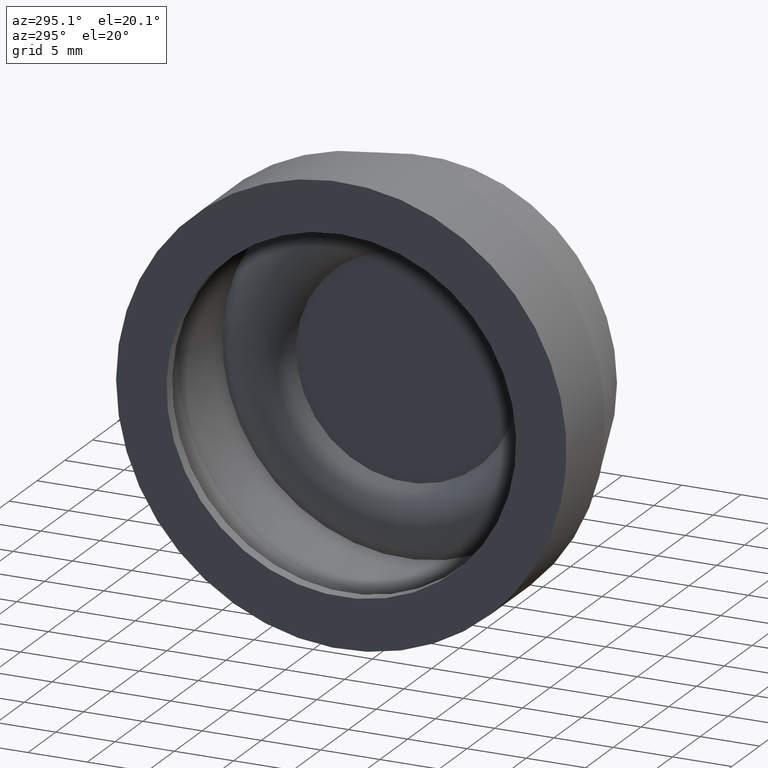
[diagram: clean part render]
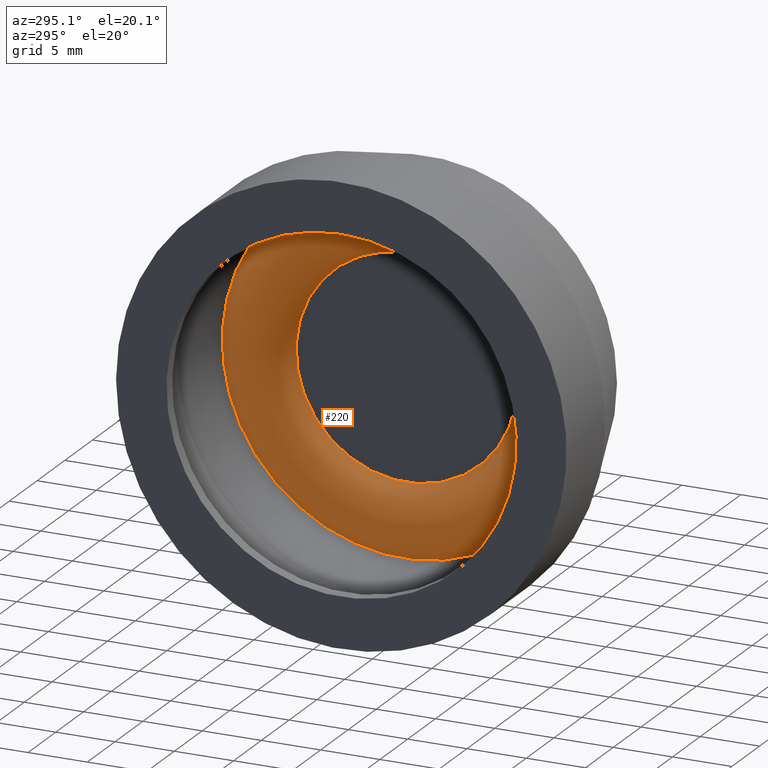
[diagram: same view with one face highlighted and labeled with its STEP entity id]
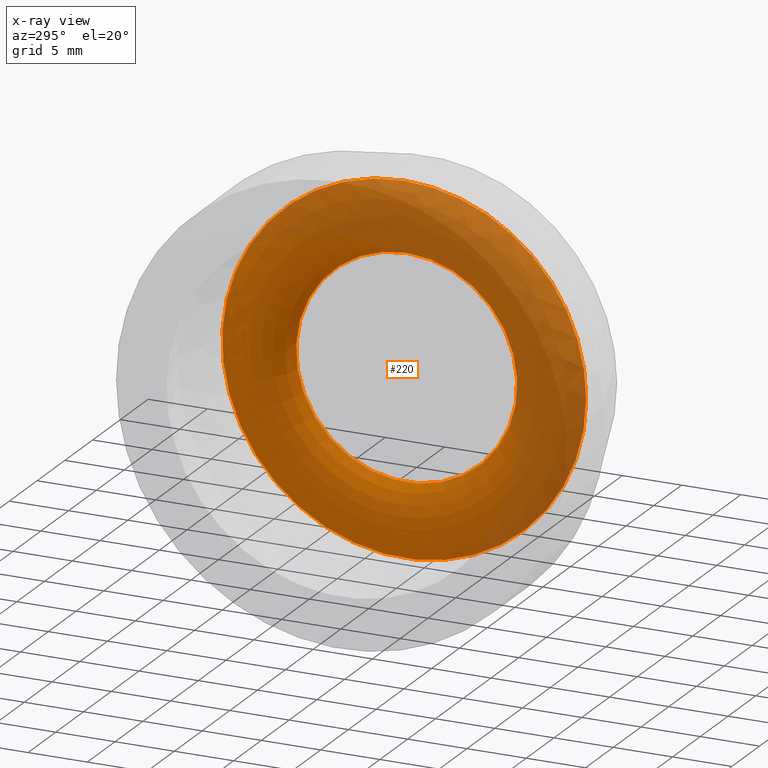
[diagram: x-ray of the same camera — body ghosted, the highlighted face saturated]
A machine part, auxiliary view. The second image highlights one B-rep face of the part: STEP entity #220.
The next image is the same camera in x-ray: the body ghosted, the highlighted face saturated — about 47% of this face is hidden behind the body in this view.
In plain terms, the highlighted face is a freeform B-spline surface patch.
Its self-contained STEP definition (entity closure, byte-faithful):
#121=CARTESIAN_POINT('',(-4.766375170140775,-23.239389475837516,1.879832E-015));
#122=VERTEX_POINT('',#121);
#123=CARTESIAN_POINT('',(-4.766375170140775,-7.888888950606166,0.0));
#124=DIRECTION('',(-1.0,0.0,0.0));
#125=DIRECTION('',(0.0,1.0,0.0));
#126=AXIS2_PLACEMENT_3D('',#123,#124,#125);
#127=CIRCLE('',#126,15.350500525231350);
#128=EDGE_CURVE('',#122,#122,#127,.T.);
#149=CARTESIAN_POINT('',(-4.329749069226685,-7.888888950606164,9.327855614887620));
#150=VERTEX_POINT('',#149);
#151=CARTESIAN_POINT('',(-4.329749069226685,-7.888888950606166,0.0));
#152=DIRECTION('',(-1.0,0.0,0.0));
#153=DIRECTION('',(0.0,0.0,-1.0));
#154=AXIS2_PLACEMENT_3D('',#151,#152,#153);
#155=CIRCLE('',#154,9.327855614887620);
#156=EDGE_CURVE('',#150,#150,#155,.F.);
#161=CARTESIAN_POINT('',(-4.329749069226686,-7.888888950606168,9.327855614887621));
#162=CARTESIAN_POINT('',(-6.079749069226686,-7.888888950606168,10.431210183622362));
#163=CARTESIAN_POINT('',(-6.079749069226686,-7.888888950606168,12.500000000000000));
#164=CARTESIAN_POINT('',(-6.079749069226686,-7.888888950606168,14.568789816377640));
#165=CARTESIAN_POINT('',(-4.329749069226685,-7.888888950606168,15.672144385112381));
#166=CARTESIAN_POINT('',(-4.329749069226686,-17.216744565493784,9.327855614887618));
#167=CARTESIAN_POINT('',(-6.079749069226686,-18.320099134228528,10.431210183622358));
#168=CARTESIAN_POINT('',(-6.079749069226686,-20.388888950606162,12.499999999999995));
#169=CARTESIAN_POINT('',(-6.079749069226686,-22.457678766983804,14.568789816377633));
#170=CARTESIAN_POINT('',(-4.329749069226685,-23.561033335718541,15.672144385112375));
#171=CARTESIAN_POINT('',(-4.329749069226686,-17.216744565493787,-1.776357E-015));
#172=CARTESIAN_POINT('',(-6.079749069226686,-18.320099134228524,-1.776357E-015));
#173=CARTESIAN_POINT('',(-6.079749069226686,-20.388888950606166,-1.776357E-015));
#174=CARTESIAN_POINT('',(-6.079749069226686,-22.457678766983804,-1.776357E-015));
#175=CARTESIAN_POINT('',(-4.329749069226685,-23.561033335718548,-1.776357E-015));
#176=CARTESIAN_POINT('',(-4.329749069226686,-17.216744565493784,-9.327855614887621));
#177=CARTESIAN_POINT('',(-6.079749069226686,-18.320099134228528,-10.431210183622362));
#178=CARTESIAN_POINT('',(-6.079749069226686,-20.388888950606162,-12.499999999999996));
#179=CARTESIAN_POINT('',(-6.079749069226686,-22.457678766983804,-14.568789816377640));
#180=CARTESIAN_POINT('',(-4.329749069226685,-23.561033335718541,-15.672144385112377));
#181=CARTESIAN_POINT('',(-4.329749069226686,-7.888888950606164,-9.327855614887621));
#182=CARTESIAN_POINT('',(-6.079749069226686,-7.888888950606164,-10.431210183622362));
#183=CARTESIAN_POINT('',(-6.079749069226686,-7.888888950606164,-12.500000000000000));
#184=CARTESIAN_POINT('',(-6.079749069226686,-7.888888950606164,-14.568789816377640));
#185=CARTESIAN_POINT('',(-4.329749069226685,-7.888888950606164,-15.672144385112381));
#186=CARTESIAN_POINT('',(-4.329749069226686,1.438966664281455,-9.327855614887618));
#187=CARTESIAN_POINT('',(-6.079749069226686,2.542321233016196,-10.431210183622358));
#188=CARTESIAN_POINT('',(-6.079749069226686,4.611111049393832,-12.499999999999995));
#189=CARTESIAN_POINT('',(-6.079749069226686,6.679900865771471,-14.568789816377633));
#190=CARTESIAN_POINT('',(-4.329749069226685,7.783255434506213,-15.672144385112375));
#191=CARTESIAN_POINT('',(-4.329749069226686,1.438966664281455,1.776357E-015));
#192=CARTESIAN_POINT('',(-6.079749069226686,2.542321233016196,1.776357E-015));
#193=CARTESIAN_POINT('',(-6.079749069226686,4.611111049393834,1.776357E-015));
#194=CARTESIAN_POINT('',(-6.079749069226686,6.679900865771474,1.776357E-015));
#195=CARTESIAN_POINT('',(-4.329749069226685,7.783255434506215,1.776357E-015));
#196=CARTESIAN_POINT('',(-4.329749069226686,1.438966664281452,9.327855614887621));
#197=CARTESIAN_POINT('',(-6.079749069226686,2.542321233016192,10.431210183622362));
#198=CARTESIAN_POINT('',(-6.079749069226686,4.611111049393829,12.499999999999996));
#199=CARTESIAN_POINT('',(-6.079749069226686,6.679900865771469,14.568789816377640));
#200=CARTESIAN_POINT('',(-4.329749069226685,7.783255434506210,15.672144385112377));
#201=CARTESIAN_POINT('',(-4.329749069226686,-7.888888950606168,9.327855614887621));
#202=CARTESIAN_POINT('',(-6.079749069226686,-7.888888950606168,10.431210183622362));
#203=CARTESIAN_POINT('',(-6.079749069226686,-7.888888950606168,12.500000000000000));
#204=CARTESIAN_POINT('',(-6.079749069226686,-7.888888950606168,14.568789816377640));
#205=CARTESIAN_POINT('',(-4.329749069226685,-7.888888950606168,15.672144385112381));
#213=(BOUNDED_SURFACE()B_SPLINE_SURFACE(2,2,((#161,#166,#171,#176,#181,#186,#191,#196,#201),(#162,#167,#172,#177,#182,#187,#192,#197,#202),(#163,#168,#173,#178,#183,#188,#193,#198,#203),(#164,#169,#174,#179,#184,#189,#194,#199,#204),(#165,#170,#175,#180,#185,#190,#195,#200,#205)),.UNSPECIFIED.,.F.,.T.,.U.)B_SPLINE_SURFACE_WITH_KNOTS((3,2,3),(3,2,2,2,3),(-2.579056409045938,-1.570796326794897,-0.562536244543855),(0.0,1.570796326794897,3.141592653589793,4.712388980384690,6.283185307179586),.UNSPECIFIED.)GEOMETRIC_REPRESENTATION_ITEM()RATIONAL_B_SPLINE_SURFACE(((1.0,0.707106781186548,1.0,0.707106781186548,1.0,0.707106781186548,1.0,0.707106781186548,1.0),(0.875595035770914,0.619139187366891,0.875595035770914,0.619139187366891,0.875595035770914,0.619139187366891,0.875595035770914,0.619139187366891,0.875595035770914),(1.0,0.707106781186548,1.0,0.707106781186548,1.0,0.707106781186548,1.0,0.707106781186548,1.0),(0.875595035770912,0.619139187366890,0.875595035770912,0.619139187366890,0.875595035770912,0.619139187366890,0.875595035770912,0.619139187366890,0.875595035770912),(1.0,0.707106781186548,1.0,0.707106781186548,1.0,0.707106781186548,1.0,0.707106781186548,1.0)))REPRESENTATION_ITEM('')SURFACE());
#214=ORIENTED_EDGE('',*,*,#156,.T.);
#215=EDGE_LOOP('',(#214));
#216=FACE_OUTER_BOUND('',#215,.T.);
#217=ORIENTED_EDGE('',*,*,#128,.T.);
#218=EDGE_LOOP('',(#217));
#219=FACE_BOUND('',#218,.T.);
#220=ADVANCED_FACE('',(#216,#219),#213,.F.);